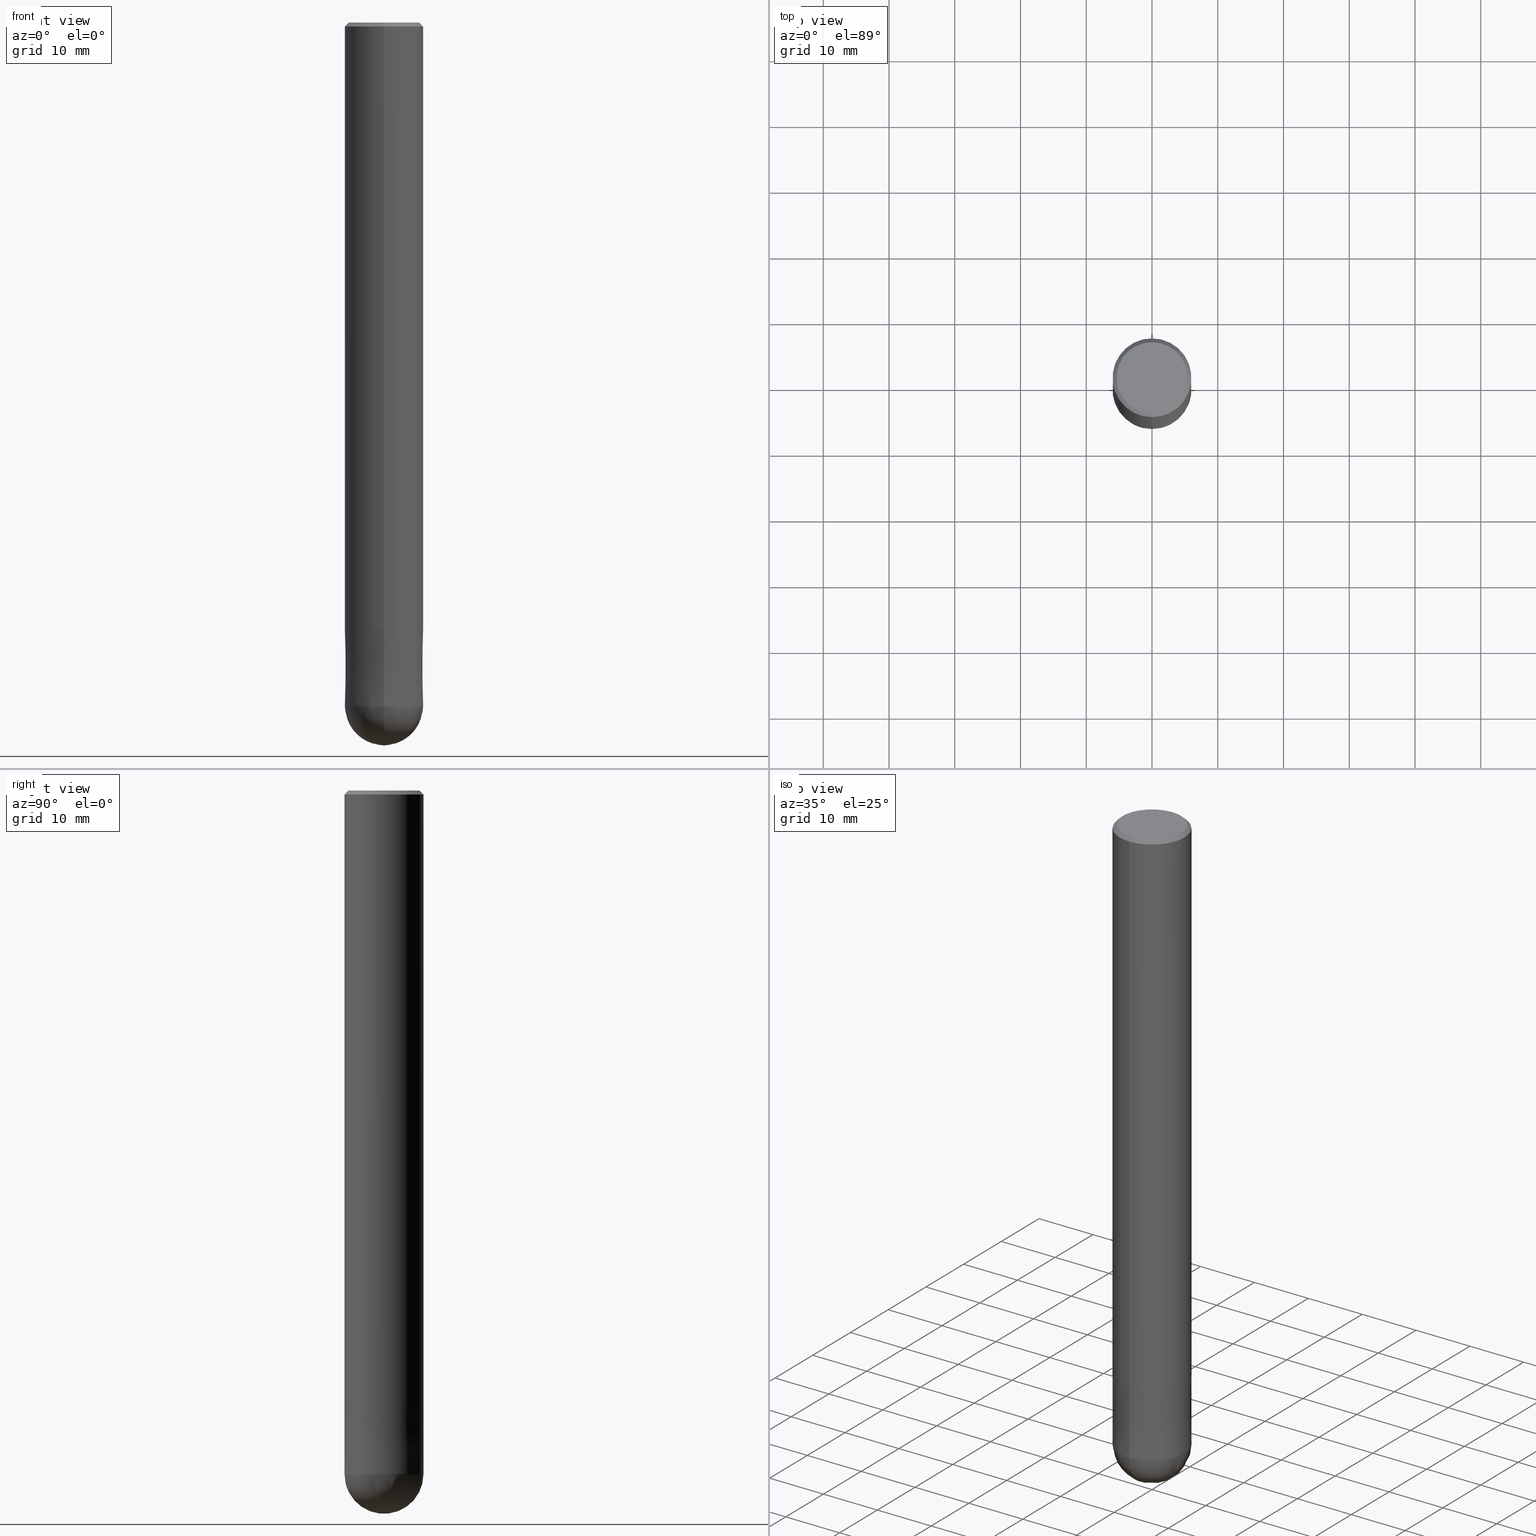
[diagram: canonical four-view strip — front | top / right | iso, engineering-drawing reading convention]
A machine part, canonical four-view strip (front | top / right | iso — engineering-drawing reading convention). The complete STEP part file that produces these views, byte-faithful:
ISO-10303-21;
HEADER;
FILE_DESCRIPTION(('no description'),'unknown implementation level');
FILE_NAME('CFB3120-1800-Huellk.stp','  ',('CIMSOURCE GmbH'),('CADClick - KiM GmbH - www.kimweb.de'),'unknown preprocess','ACIS','unknown authorization');
FILE_SCHEMA(('automotive_design'));
ENDSEC;
DATA;
#1=MECHANICAL_DESIGN_GEOMETRIC_PRESENTATION_REPRESENTATION(' ',(#10,#11,#12,#13,#14,#15,#16,#17,#18,#19,#20,#21,#22,#23,#24,#25,#26,#27,#28,#29,#30,#31,#32,#33,#34,#35,#36,#37,#38,#39,#40,#41,#42,#43,#44,#45,#46,#47),#6);
#2=PRODUCT_DEFINITION_CONTEXT('',#48,'design');
#3=APPLICATION_PROTOCOL_DEFINITION('INTERNATIONAL STANDARD','automotive_design',1994,#48);
#4=PRODUCT_CATEGORY_RELATIONSHIP('NONE','NONE',#49,#50);
#5=SHAPE_DEFINITION_REPRESENTATION(#51,#52);
#6= (GEOMETRIC_REPRESENTATION_CONTEXT(3)GLOBAL_UNCERTAINTY_ASSIGNED_CONTEXT((#55))GLOBAL_UNIT_ASSIGNED_CONTEXT((#57,#58,#59))REPRESENTATION_CONTEXT('NONE','WORKSPACE'));
#10=STYLED_ITEM('',(#61),#62);
#11=STYLED_ITEM('',(#63),#64);
#12=STYLED_ITEM('',(#65),#66);
#13=STYLED_ITEM('',(#67),#68);
#14=STYLED_ITEM('',(#69),#70);
#15=STYLED_ITEM('',(#71),#72);
#16=STYLED_ITEM('',(#73),#74);
#17=STYLED_ITEM('',(#75),#76);
#18=STYLED_ITEM('',(#77),#78);
#19=STYLED_ITEM('',(#79),#80);
#20=STYLED_ITEM('',(#81),#82);
#21=STYLED_ITEM('',(#83),#84);
#22=STYLED_ITEM('',(#85),#86);
#23=STYLED_ITEM('',(#87),#88);
#24=STYLED_ITEM('',(#89),#90);
#25=STYLED_ITEM('',(#91),#92);
#26=STYLED_ITEM('',(#93),#94);
#27=STYLED_ITEM('',(#95),#96);
#28=STYLED_ITEM('',(#97),#98);
#29=STYLED_ITEM('',(#99),#100);
#30=STYLED_ITEM('',(#101),#102);
#31=STYLED_ITEM('',(#103),#104);
#32=STYLED_ITEM('',(#105),#106);
#33=STYLED_ITEM('',(#107),#108);
#34=STYLED_ITEM('',(#109),#110);
#35=STYLED_ITEM('',(#111),#112);
#36=STYLED_ITEM('',(#113),#114);
#37=STYLED_ITEM('',(#115),#116);
#38=STYLED_ITEM('',(#117),#118);
#39=STYLED_ITEM('',(#119),#120);
#40=STYLED_ITEM('',(#121),#122);
#41=STYLED_ITEM('',(#123),#124);
#42=STYLED_ITEM('',(#125),#126);
#43=STYLED_ITEM('',(#127),#128);
#44=STYLED_ITEM('',(#129),#130);
#45=STYLED_ITEM('',(#131),#132);
#46=STYLED_ITEM('',(#133),#134);
#47=STYLED_ITEM('',(#135),#136);
#48=APPLICATION_CONTEXT(' ');
#49=PRODUCT_CATEGORY('part','NONE');
#50=PRODUCT_RELATED_PRODUCT_CATEGORY('detail',' ',(#137));
#51=PRODUCT_DEFINITION_SHAPE('NONE','NONE',#138);
#52=ADVANCED_BREP_SHAPE_REPRESENTATION('1',(#96,#139),#6);
#55=UNCERTAINTY_MEASURE_WITH_UNIT(LENGTH_MEASURE(1.0E-006),#57,'','');
#57= (CONVERSION_BASED_UNIT('MILLIMETRE',#142)LENGTH_UNIT()NAMED_UNIT(#145));
#58= (NAMED_UNIT(#147)PLANE_ANGLE_UNIT()SI_UNIT($,.RADIAN.));
#59= (NAMED_UNIT(#147)SOLID_ANGLE_UNIT()SI_UNIT($,.STERADIAN.));
#61=PRESENTATION_STYLE_ASSIGNMENT((#153));
#62=EDGE_CURVE('',#132,#116,#154,.T.);
#63=PRESENTATION_STYLE_ASSIGNMENT((#155));
#64=ADVANCED_FACE('',(#156),#157,.T.);
#65=PRESENTATION_STYLE_ASSIGNMENT((#158));
#66=VERTEX_POINT('',#159);
#67=PRESENTATION_STYLE_ASSIGNMENT((#160));
#68=EDGE_CURVE('',#72,#136,#161,.T.);
#69=PRESENTATION_STYLE_ASSIGNMENT((#162));
#70=ADVANCED_FACE('',(#163),#164,.T.);
#71=PRESENTATION_STYLE_ASSIGNMENT((#165));
#72=VERTEX_POINT('',#166);
#73=PRESENTATION_STYLE_ASSIGNMENT((#167));
#74=VERTEX_POINT('',#168);
#75=PRESENTATION_STYLE_ASSIGNMENT((#169));
#76=VERTEX_POINT('',#170);
#77=PRESENTATION_STYLE_ASSIGNMENT((#171));
#78=ADVANCED_FACE('',(#172),#173,.T.);
#79=PRESENTATION_STYLE_ASSIGNMENT((#174));
#80=VERTEX_POINT('',#175);
#81=PRESENTATION_STYLE_ASSIGNMENT((#176));
#82=ADVANCED_FACE('',(#177),#178,.T.);
#83=PRESENTATION_STYLE_ASSIGNMENT((#179));
#84=EDGE_CURVE('',#132,#118,#180,.T.);
#85=PRESENTATION_STYLE_ASSIGNMENT((#181));
#86=EDGE_CURVE('',#132,#118,#182,.T.);
#87=PRESENTATION_STYLE_ASSIGNMENT((#183));
#88=EDGE_CURVE('',#76,#74,#184,.T.);
#89=PRESENTATION_STYLE_ASSIGNMENT((#185));
#90=EDGE_CURVE('',#66,#80,#186,.T.);
#91=PRESENTATION_STYLE_ASSIGNMENT((#187));
#92=EDGE_CURVE('',#76,#136,#188,.T.);
#93=PRESENTATION_STYLE_ASSIGNMENT((#189));
#94=EDGE_CURVE('',#74,#72,#190,.T.);
#95=PRESENTATION_STYLE_ASSIGNMENT((#191));
#96=MANIFOLD_SOLID_BREP('1',#192);
#97=PRESENTATION_STYLE_ASSIGNMENT((#193));
#98=EDGE_CURVE('',#72,#74,#194,.T.);
#99=PRESENTATION_STYLE_ASSIGNMENT((#195));
#100=EDGE_CURVE('',#136,#76,#196,.T.);
#101=PRESENTATION_STYLE_ASSIGNMENT((#197));
#102=EDGE_CURVE('',#118,#132,#198,.T.);
#103=PRESENTATION_STYLE_ASSIGNMENT((#199));
#104=ADVANCED_FACE('',(#200),#201,.T.);
#105=PRESENTATION_STYLE_ASSIGNMENT((#202));
#106=EDGE_CURVE('',#112,#118,#203,.T.);
#107=PRESENTATION_STYLE_ASSIGNMENT((#204));
#108=EDGE_CURVE('',#112,#116,#205,.T.);
#109=PRESENTATION_STYLE_ASSIGNMENT((#206));
#110=EDGE_CURVE('',#80,#66,#207,.T.);
#111=PRESENTATION_STYLE_ASSIGNMENT((#208));
#112=VERTEX_POINT('',#209);
#113=PRESENTATION_STYLE_ASSIGNMENT((#210));
#114=ADVANCED_FACE('',(#211),#212,.T.);
#115=PRESENTATION_STYLE_ASSIGNMENT((#213));
#116=VERTEX_POINT('',#214);
#117=PRESENTATION_STYLE_ASSIGNMENT((#215));
#118=VERTEX_POINT('',#216);
#119=PRESENTATION_STYLE_ASSIGNMENT((#217));
#120=ADVANCED_FACE('',(#218,#219),#220,.T.);
#121=PRESENTATION_STYLE_ASSIGNMENT((#221));
#122=ADVANCED_FACE('',(#222),#223,.T.);
#123=PRESENTATION_STYLE_ASSIGNMENT((#224));
#124=EDGE_CURVE('',#116,#112,#225,.T.);
#125=PRESENTATION_STYLE_ASSIGNMENT((#226));
#126=ADVANCED_FACE('',(#227),#228,.T.);
#127=PRESENTATION_STYLE_ASSIGNMENT((#229));
#128=EDGE_CURVE('',#66,#72,#230,.T.);
#129=PRESENTATION_STYLE_ASSIGNMENT((#231));
#130=ADVANCED_FACE('',(#232),#233,.T.);
#131=PRESENTATION_STYLE_ASSIGNMENT((#234));
#132=VERTEX_POINT('',#235);
#133=PRESENTATION_STYLE_ASSIGNMENT((#236));
#134=EDGE_CURVE('',#74,#80,#237,.T.);
#135=PRESENTATION_STYLE_ASSIGNMENT((#238));
#136=VERTEX_POINT('',#239);
#137=PRODUCT('1','1','PART-1-DESC',(#240));
#138=PRODUCT_DEFINITION('NONE','NONE',#241,#2);
#139=AXIS2_PLACEMENT_3D('',#242,#243,#244);
#142=LENGTH_MEASURE_WITH_UNIT(LENGTH_MEASURE(1.0),#245);
#145=DIMENSIONAL_EXPONENTS(1.0,0.0,0.0,0.0,0.0,0.0,0.0);
#147=DIMENSIONAL_EXPONENTS(0.0,0.0,0.0,0.0,0.0,0.0,0.0);
#153=CURVE_STYLE('',#246,POSITIVE_LENGTH_MEASURE(1.0E-006),#247);
#154=LINE('',#248,#249);
#155=SURFACE_STYLE_USAGE(.BOTH.,#250);
#156=FACE_OUTER_BOUND('',#251,.T.);
#157=SPHERICAL_SURFACE('',#252,6.00000000000001);
#158=POINT_STYLE(' ',#253,POSITIVE_LENGTH_MEASURE(1.0E-006),#254);
#159=CARTESIAN_POINT('',(0.0,5.4,0.0));
#160=CURVE_STYLE('',#255,POSITIVE_LENGTH_MEASURE(1.0E-006),#256);
#161=LINE('',#257,#258);
#162=SURFACE_STYLE_USAGE(.BOTH.,#259);
#163=FACE_OUTER_BOUND('',#260,.T.);
#164=SPHERICAL_SURFACE('',#261,6.00000000000001);
#165=POINT_STYLE(' ',#262,POSITIVE_LENGTH_MEASURE(1.0E-006),#263);
#166=CARTESIAN_POINT('',(0.0,6.0,-0.599999999999994));
#167=POINT_STYLE(' ',#264,POSITIVE_LENGTH_MEASURE(1.0E-006),#265);
#168=CARTESIAN_POINT('',(7.34763812293426E-016,-6.0,-0.599999999999994));
#169=POINT_STYLE(' ',#266,POSITIVE_LENGTH_MEASURE(1.0E-006),#267);
#170=CARTESIAN_POINT('',(7.34763812293426E-016,-6.0,-92.0));
#171=SURFACE_STYLE_USAGE(.BOTH.,#268);
#172=FACE_OUTER_BOUND('',#269,.T.);
#173=CYLINDRICAL_SURFACE('',#270,6.0);
#174=POINT_STYLE(' ',#271,POSITIVE_LENGTH_MEASURE(1.0E-006),#272);
#175=CARTESIAN_POINT('',(6.61287431064084E-016,-5.4,0.0));
#176=SURFACE_STYLE_USAGE(.BOTH.,#273);
#177=FACE_OUTER_BOUND('',#274,.T.);
#178=CONICAL_SURFACE('',#275,5.7,0.785398163397453);
#179=CURVE_STYLE('',#276,POSITIVE_LENGTH_MEASURE(1.0E-006),#277);
#180=CIRCLE('',#278,6.00000000000001);
#181=CURVE_STYLE('',#279,POSITIVE_LENGTH_MEASURE(1.0E-006),#280);
#182=CIRCLE('',#281,6.0);
#183=CURVE_STYLE('',#282,POSITIVE_LENGTH_MEASURE(1.0E-006),#283);
#184=LINE('',#284,#285);
#185=CURVE_STYLE('',#286,POSITIVE_LENGTH_MEASURE(1.0E-006),#287);
#186=CIRCLE('',#288,5.4);
#187=CURVE_STYLE('',#289,POSITIVE_LENGTH_MEASURE(1.0E-006),#290);
#188=CIRCLE('',#291,6.0);
#189=CURVE_STYLE('',#292,POSITIVE_LENGTH_MEASURE(1.0E-006),#293);
#190=CIRCLE('',#294,6.0);
#191=SURFACE_STYLE_USAGE(.BOTH.,#295);
#192=CLOSED_SHELL('',(#70,#104,#126,#82,#120,#114,#130,#78,#122,#64));
#193=CURVE_STYLE('',#296,POSITIVE_LENGTH_MEASURE(1.0E-006),#297);
#194=CIRCLE('',#298,6.0);
#195=CURVE_STYLE('',#299,POSITIVE_LENGTH_MEASURE(1.0E-006),#300);
#196=CIRCLE('',#301,6.0);
#197=CURVE_STYLE('',#302,POSITIVE_LENGTH_MEASURE(1.0E-006),#303);
#198=CIRCLE('',#304,6.0);
#199=SURFACE_STYLE_USAGE(.BOTH.,#305);
#200=FACE_OUTER_BOUND('',#306,.T.);
#201=CONICAL_SURFACE('',#307,5.99995,8.33333333319503E-006);
#202=CURVE_STYLE('',#308,POSITIVE_LENGTH_MEASURE(1.0E-006),#309);
#203=LINE('',#310,#311);
#204=CURVE_STYLE('',#312,POSITIVE_LENGTH_MEASURE(1.0E-006),#313);
#205=CIRCLE('',#314,5.9999);
#206=CURVE_STYLE('',#315,POSITIVE_LENGTH_MEASURE(1.0E-006),#316);
#207=CIRCLE('',#317,5.4);
#208=POINT_STYLE(' ',#318,POSITIVE_LENGTH_MEASURE(1.0E-006),#319);
#209=CARTESIAN_POINT('',(0.0,5.9999,-92.0));
#210=SURFACE_STYLE_USAGE(.BOTH.,#320);
#211=FACE_OUTER_BOUND('',#321,.T.);
#212=PLANE('',#322);
#213=POINT_STYLE(' ',#323,POSITIVE_LENGTH_MEASURE(1.0E-006),#324);
#214=CARTESIAN_POINT('',(7.34751566229888E-016,-5.9999,-92.0));
#215=POINT_STYLE(' ',#325,POSITIVE_LENGTH_MEASURE(1.0E-006),#326);
#216=CARTESIAN_POINT('',(0.0,6.0,-104.0));
#217=SURFACE_STYLE_USAGE(.BOTH.,#327);
#218=FACE_OUTER_BOUND('',#328,.T.);
#219=FACE_BOUND('',#329,.T.);
#220=PLANE('',#330);
#221=SURFACE_STYLE_USAGE(.BOTH.,#331);
#222=FACE_OUTER_BOUND('',#332,.T.);
#223=CONICAL_SURFACE('',#333,5.99995,8.33333333319503E-006);
#224=CURVE_STYLE('',#334,POSITIVE_LENGTH_MEASURE(1.0E-006),#335);
#225=CIRCLE('',#336,5.9999);
#226=SURFACE_STYLE_USAGE(.BOTH.,#337);
#227=FACE_OUTER_BOUND('',#338,.T.);
#228=CYLINDRICAL_SURFACE('',#339,6.0);
#229=CURVE_STYLE('',#340,POSITIVE_LENGTH_MEASURE(1.0E-006),#341);
#230=LINE('',#342,#343);
#231=SURFACE_STYLE_USAGE(.BOTH.,#344);
#232=FACE_OUTER_BOUND('',#345,.T.);
#233=CONICAL_SURFACE('',#346,5.7,0.785398163397453);
#234=POINT_STYLE(' ',#347,POSITIVE_LENGTH_MEASURE(1.0E-006),#348);
#235=CARTESIAN_POINT('',(7.34763812293426E-016,-6.0,-104.0));
#236=CURVE_STYLE('',#349,POSITIVE_LENGTH_MEASURE(1.0E-006),#350);
#237=LINE('',#351,#352);
#238=POINT_STYLE(' ',#353,POSITIVE_LENGTH_MEASURE(1.0E-006),#354);
#239=CARTESIAN_POINT('',(0.0,6.0,-92.0));
#240=PRODUCT_CONTEXT('',#48,'mechanical');
#241=PRODUCT_DEFINITION_FORMATION_WITH_SPECIFIED_SOURCE(' ','NONE',#137,.NOT_KNOWN.);
#242=CARTESIAN_POINT('',(0.0,0.0,0.0));
#243=DIRECTION('',(0.0,0.0,1.0));
#244=DIRECTION('',(1.0,0.0,0.0));
#245= (NAMED_UNIT(#145)LENGTH_UNIT()SI_UNIT(.MILLI.,.METRE.));
#246=DRAUGHTING_PRE_DEFINED_CURVE_FONT('continuous');
#247=COLOUR_RGB('',0.800000011920929,0.800000011920929,0.800000011920929);
#248=CARTESIAN_POINT('',(7.34757689261657E-016,-5.99995,-98.0));
#249=VECTOR('',#356,1.0);
#250=SURFACE_SIDE_STYLE('',(#357));
#251=EDGE_LOOP('',(#358,#359));
#252=AXIS2_PLACEMENT_3D('',#360,#361,#362);
#253=PRE_DEFINED_MARKER('');
#254=COLOUR_RGB('',0.498039215803146,0.498039215803146,0.498039215803146);
#255=DRAUGHTING_PRE_DEFINED_CURVE_FONT('continuous');
#256=COLOUR_RGB('',0.498039215803146,0.498039215803146,0.498039215803146);
#257=CARTESIAN_POINT('',(-7.34763812293426E-016,6.0,-46.3));
#258=VECTOR('',#363,1.0);
#259=SURFACE_SIDE_STYLE('',(#364));
#260=EDGE_LOOP('',(#365,#366));
#261=AXIS2_PLACEMENT_3D('',#367,#368,#369);
#262=PRE_DEFINED_MARKER('');
#263=COLOUR_RGB('',0.498039215803146,0.498039215803146,0.498039215803146);
#264=PRE_DEFINED_MARKER('');
#265=COLOUR_RGB('',0.498039215803146,0.498039215803146,0.498039215803146);
#266=PRE_DEFINED_MARKER('');
#267=COLOUR_RGB('',0.498039215803146,0.498039215803146,0.498039215803146);
#268=SURFACE_SIDE_STYLE('',(#370));
#269=EDGE_LOOP('',(#371,#372,#373,#374));
#270=AXIS2_PLACEMENT_3D('',#375,#376,#377);
#271=PRE_DEFINED_MARKER('');
#272=COLOUR_RGB('',0.498039215803146,0.498039215803146,0.498039215803146);
#273=SURFACE_SIDE_STYLE('',(#378));
#274=EDGE_LOOP('',(#379,#380,#381,#382));
#275=AXIS2_PLACEMENT_3D('',#383,#384,#385);
#276=DRAUGHTING_PRE_DEFINED_CURVE_FONT('continuous');
#277=COLOUR_RGB('',0.800000011920929,0.800000011920929,0.800000011920929);
#278=AXIS2_PLACEMENT_3D('',#386,#387,#388);
#279=DRAUGHTING_PRE_DEFINED_CURVE_FONT('continuous');
#280=COLOUR_RGB('',0.800000011920929,0.800000011920929,0.800000011920929);
#281=AXIS2_PLACEMENT_3D('',#389,#390,#391);
#282=DRAUGHTING_PRE_DEFINED_CURVE_FONT('continuous');
#283=COLOUR_RGB('',0.498039215803146,0.498039215803146,0.498039215803146);
#284=CARTESIAN_POINT('',(7.34763812293426E-016,-6.0,-46.3));
#285=VECTOR('',#392,1.0);
#286=DRAUGHTING_PRE_DEFINED_CURVE_FONT('continuous');
#287=COLOUR_RGB('',0.498039215803146,0.498039215803146,0.498039215803146);
#288=AXIS2_PLACEMENT_3D('',#393,#394,#395);
#289=DRAUGHTING_PRE_DEFINED_CURVE_FONT('continuous');
#290=COLOUR_RGB('',0.498039215803146,0.498039215803146,0.498039215803146);
#291=AXIS2_PLACEMENT_3D('',#396,#397,#398);
#292=DRAUGHTING_PRE_DEFINED_CURVE_FONT('continuous');
#293=COLOUR_RGB('',0.498039215803146,0.498039215803146,0.498039215803146);
#294=AXIS2_PLACEMENT_3D('',#399,#400,#401);
#295=SURFACE_SIDE_STYLE('',(#402));
#296=DRAUGHTING_PRE_DEFINED_CURVE_FONT('continuous');
#297=COLOUR_RGB('',0.498039215803146,0.498039215803146,0.498039215803146);
#298=AXIS2_PLACEMENT_3D('',#403,#404,#405);
#299=DRAUGHTING_PRE_DEFINED_CURVE_FONT('continuous');
#300=COLOUR_RGB('',0.498039215803146,0.498039215803146,0.498039215803146);
#301=AXIS2_PLACEMENT_3D('',#406,#407,#408);
#302=DRAUGHTING_PRE_DEFINED_CURVE_FONT('continuous');
#303=COLOUR_RGB('',0.800000011920929,0.800000011920929,0.800000011920929);
#304=AXIS2_PLACEMENT_3D('',#409,#410,#411);
#305=SURFACE_SIDE_STYLE('',(#412));
#306=EDGE_LOOP('',(#413,#414,#415,#416));
#307=AXIS2_PLACEMENT_3D('',#417,#418,#419);
#308=DRAUGHTING_PRE_DEFINED_CURVE_FONT('continuous');
#309=COLOUR_RGB('',0.800000011920929,0.800000011920929,0.800000011920929);
#310=CARTESIAN_POINT('',(-7.34757689261657E-016,5.99995,-98.0));
#311=VECTOR('',#420,1.0);
#312=DRAUGHTING_PRE_DEFINED_CURVE_FONT('continuous');
#313=COLOUR_RGB('',0.800000011920929,0.800000011920929,0.800000011920929);
#314=AXIS2_PLACEMENT_3D('',#421,#422,#423);
#315=DRAUGHTING_PRE_DEFINED_CURVE_FONT('continuous');
#316=COLOUR_RGB('',0.498039215803146,0.498039215803146,0.498039215803146);
#317=AXIS2_PLACEMENT_3D('',#424,#425,#426);
#318=PRE_DEFINED_MARKER('');
#319=COLOUR_RGB('',0.800000011920929,0.800000011920929,0.800000011920929);
#320=SURFACE_SIDE_STYLE('',(#427));
#321=EDGE_LOOP('',(#428,#429));
#322=AXIS2_PLACEMENT_3D('',#430,#431,#432);
#323=PRE_DEFINED_MARKER('');
#324=COLOUR_RGB('',0.800000011920929,0.800000011920929,0.800000011920929);
#325=PRE_DEFINED_MARKER('');
#326=COLOUR_RGB('',0.800000011920929,0.800000011920929,0.800000011920929);
#327=SURFACE_SIDE_STYLE('',(#433));
#328=EDGE_LOOP('',(#434,#435));
#329=EDGE_LOOP('',(#436,#437));
#330=AXIS2_PLACEMENT_3D('',#438,#439,#440);
#331=SURFACE_SIDE_STYLE('',(#441));
#332=EDGE_LOOP('',(#442,#443,#444,#445));
#333=AXIS2_PLACEMENT_3D('',#446,#447,#448);
#334=DRAUGHTING_PRE_DEFINED_CURVE_FONT('continuous');
#335=COLOUR_RGB('',0.800000011920929,0.800000011920929,0.800000011920929);
#336=AXIS2_PLACEMENT_3D('',#449,#450,#451);
#337=SURFACE_SIDE_STYLE('',(#452));
#338=EDGE_LOOP('',(#453,#454,#455,#456));
#339=AXIS2_PLACEMENT_3D('',#457,#458,#459);
#340=DRAUGHTING_PRE_DEFINED_CURVE_FONT('continuous');
#341=COLOUR_RGB('',0.498039215803146,0.498039215803146,0.498039215803146);
#342=CARTESIAN_POINT('',(-6.98025621678755E-016,5.7,-0.299999999999997));
#343=VECTOR('',#460,1.0);
#344=SURFACE_SIDE_STYLE('',(#461));
#345=EDGE_LOOP('',(#462,#463,#464,#465));
#346=AXIS2_PLACEMENT_3D('',#466,#467,#468);
#347=PRE_DEFINED_MARKER('');
#348=COLOUR_RGB('',0.800000011920929,0.800000011920929,0.800000011920929);
#349=DRAUGHTING_PRE_DEFINED_CURVE_FONT('continuous');
#350=COLOUR_RGB('',0.498039215803146,0.498039215803146,0.498039215803146);
#351=CARTESIAN_POINT('',(6.98025621678755E-016,-5.7,-0.299999999999997));
#352=VECTOR('',#469,1.0);
#353=PRE_DEFINED_MARKER('');
#354=COLOUR_RGB('',0.498039215803146,0.498039215803146,0.498039215803146);
#356=DIRECTION('',(-1.02050529482323E-021,8.33333333309857E-006,0.999999999965278));
#357=SURFACE_STYLE_FILL_AREA(#470);
#358=ORIENTED_EDGE('',*,*,#84,.T.);
#359=ORIENTED_EDGE('',*,*,#102,.T.);
#360=CARTESIAN_POINT('',(0.0,0.0,-104.0));
#361=DIRECTION('',(0.0,1.0,0.0));
#362=DIRECTION('',(0.0,0.0,-1.0));
#363=DIRECTION('',(0.0,0.0,-1.0));
#364=SURFACE_STYLE_FILL_AREA(#471);
#365=ORIENTED_EDGE('',*,*,#84,.F.);
#366=ORIENTED_EDGE('',*,*,#86,.T.);
#367=CARTESIAN_POINT('',(0.0,0.0,-104.0));
#368=DIRECTION('',(0.0,1.0,0.0));
#369=DIRECTION('',(0.0,0.0,-1.0));
#370=SURFACE_STYLE_FILL_AREA(#472);
#371=ORIENTED_EDGE('',*,*,#68,.T.);
#372=ORIENTED_EDGE('',*,*,#92,.F.);
#373=ORIENTED_EDGE('',*,*,#88,.T.);
#374=ORIENTED_EDGE('',*,*,#94,.T.);
#375=CARTESIAN_POINT('',(0.0,0.0,-46.3));
#376=DIRECTION('',(-0.0,-0.0,1.0));
#377=DIRECTION('',(0.0,1.0,0.0));
#378=SURFACE_STYLE_FILL_AREA(#473);
#379=ORIENTED_EDGE('',*,*,#128,.F.);
#380=ORIENTED_EDGE('',*,*,#90,.T.);
#381=ORIENTED_EDGE('',*,*,#134,.F.);
#382=ORIENTED_EDGE('',*,*,#98,.F.);
#383=CARTESIAN_POINT('',(0.0,0.0,-0.299999999999997));
#384=DIRECTION('',(0.0,-0.0,-1.0));
#385=DIRECTION('',(0.0,1.0,0.0));
#386=CARTESIAN_POINT('',(0.0,0.0,-104.0));
#387=DIRECTION('',(1.0,0.0,1.22460635382238E-016));
#388=DIRECTION('',(-1.22460635382238E-016,0.0,1.0));
#389=CARTESIAN_POINT('',(0.0,0.0,-104.0));
#390=DIRECTION('',(0.0,0.0,-1.0));
#391=DIRECTION('',(0.0,1.0,0.0));
#392=DIRECTION('',(-0.0,-0.0,1.0));
#393=CARTESIAN_POINT('',(0.0,0.0,0.0));
#394=DIRECTION('',(0.0,0.0,-1.0));
#395=DIRECTION('',(0.0,1.0,0.0));
#396=CARTESIAN_POINT('',(0.0,0.0,-92.0));
#397=DIRECTION('',(0.0,0.0,-1.0));
#398=DIRECTION('',(0.0,1.0,0.0));
#399=CARTESIAN_POINT('',(0.0,0.0,-0.599999999999994));
#400=DIRECTION('',(0.0,0.0,-1.0));
#401=DIRECTION('',(0.0,1.0,0.0));
#402=SURFACE_STYLE_FILL_AREA(#474);
#403=CARTESIAN_POINT('',(0.0,0.0,-0.599999999999994));
#404=DIRECTION('',(0.0,0.0,-1.0));
#405=DIRECTION('',(0.0,1.0,0.0));
#406=CARTESIAN_POINT('',(0.0,0.0,-92.0));
#407=DIRECTION('',(0.0,0.0,-1.0));
#408=DIRECTION('',(0.0,1.0,0.0));
#409=CARTESIAN_POINT('',(0.0,0.0,-104.0));
#410=DIRECTION('',(0.0,0.0,-1.0));
#411=DIRECTION('',(0.0,1.0,0.0));
#412=SURFACE_STYLE_FILL_AREA(#475);
#413=ORIENTED_EDGE('',*,*,#106,.F.);
#414=ORIENTED_EDGE('',*,*,#108,.T.);
#415=ORIENTED_EDGE('',*,*,#62,.F.);
#416=ORIENTED_EDGE('',*,*,#102,.F.);
#417=CARTESIAN_POINT('',(0.0,0.0,-98.0));
#418=DIRECTION('',(0.0,-0.0,-1.0));
#419=DIRECTION('',(0.0,1.0,0.0));
#420=DIRECTION('',(-1.02050529482323E-021,8.33333333309857E-006,-0.999999999965278));
#421=CARTESIAN_POINT('',(0.0,0.0,-92.0));
#422=DIRECTION('',(0.0,0.0,-1.0));
#423=DIRECTION('',(0.0,1.0,0.0));
#424=CARTESIAN_POINT('',(0.0,0.0,0.0));
#425=DIRECTION('',(0.0,0.0,-1.0));
#426=DIRECTION('',(0.0,1.0,0.0));
#427=SURFACE_STYLE_FILL_AREA(#476);
#428=ORIENTED_EDGE('',*,*,#90,.F.);
#429=ORIENTED_EDGE('',*,*,#110,.F.);
#430=CARTESIAN_POINT('',(0.0,2.7,0.0));
#431=DIRECTION('',(-0.0,0.0,1.0));
#432=DIRECTION('',(0.0,-1.0,0.0));
#433=SURFACE_STYLE_FILL_AREA(#477);
#434=ORIENTED_EDGE('',*,*,#100,.T.);
#435=ORIENTED_EDGE('',*,*,#92,.T.);
#436=ORIENTED_EDGE('',*,*,#108,.F.);
#437=ORIENTED_EDGE('',*,*,#124,.F.);
#438=CARTESIAN_POINT('',(0.0,3.0,-92.0));
#439=DIRECTION('',(0.0,0.0,-1.0));
#440=DIRECTION('',(0.0,1.0,0.0));
#441=SURFACE_STYLE_FILL_AREA(#478);
#442=ORIENTED_EDGE('',*,*,#106,.T.);
#443=ORIENTED_EDGE('',*,*,#86,.F.);
#444=ORIENTED_EDGE('',*,*,#62,.T.);
#445=ORIENTED_EDGE('',*,*,#124,.T.);
#446=CARTESIAN_POINT('',(0.0,0.0,-98.0));
#447=DIRECTION('',(0.0,-0.0,-1.0));
#448=DIRECTION('',(0.0,1.0,0.0));
#449=CARTESIAN_POINT('',(0.0,0.0,-92.0));
#450=DIRECTION('',(0.0,0.0,-1.0));
#451=DIRECTION('',(0.0,1.0,0.0));
#452=SURFACE_STYLE_FILL_AREA(#479);
#453=ORIENTED_EDGE('',*,*,#68,.F.);
#454=ORIENTED_EDGE('',*,*,#98,.T.);
#455=ORIENTED_EDGE('',*,*,#88,.F.);
#456=ORIENTED_EDGE('',*,*,#100,.F.);
#457=CARTESIAN_POINT('',(0.0,0.0,-46.3));
#458=DIRECTION('',(-0.0,-0.0,1.0));
#459=DIRECTION('',(0.0,1.0,0.0));
#460=DIRECTION('',(-8.65927457071939E-017,0.707106781186551,-0.707106781186544));
#461=SURFACE_STYLE_FILL_AREA(#480);
#462=ORIENTED_EDGE('',*,*,#128,.T.);
#463=ORIENTED_EDGE('',*,*,#94,.F.);
#464=ORIENTED_EDGE('',*,*,#134,.T.);
#465=ORIENTED_EDGE('',*,*,#110,.T.);
#466=CARTESIAN_POINT('',(0.0,0.0,-0.299999999999997));
#467=DIRECTION('',(0.0,-0.0,-1.0));
#468=DIRECTION('',(0.0,1.0,0.0));
#469=DIRECTION('',(-8.65927457071939E-017,0.707106781186551,0.707106781186544));
#470=FILL_AREA_STYLE('',(#481));
#471=FILL_AREA_STYLE('',(#482));
#472=FILL_AREA_STYLE('',(#483));
#473=FILL_AREA_STYLE('',(#484));
#474=FILL_AREA_STYLE('',(#485));
#475=FILL_AREA_STYLE('',(#486));
#476=FILL_AREA_STYLE('',(#487));
#477=FILL_AREA_STYLE('',(#488));
#478=FILL_AREA_STYLE('',(#489));
#479=FILL_AREA_STYLE('',(#490));
#480=FILL_AREA_STYLE('',(#491));
#481=FILL_AREA_STYLE_COLOUR('',#492);
#482=FILL_AREA_STYLE_COLOUR('',#493);
#483=FILL_AREA_STYLE_COLOUR('',#494);
#484=FILL_AREA_STYLE_COLOUR('',#495);
#485=FILL_AREA_STYLE_COLOUR('',#496);
#486=FILL_AREA_STYLE_COLOUR('',#497);
#487=FILL_AREA_STYLE_COLOUR('',#498);
#488=FILL_AREA_STYLE_COLOUR('',#499);
#489=FILL_AREA_STYLE_COLOUR('',#500);
#490=FILL_AREA_STYLE_COLOUR('',#501);
#491=FILL_AREA_STYLE_COLOUR('',#502);
#492=COLOUR_RGB('',0.800000011920929,0.800000011920929,0.800000011920929);
#493=COLOUR_RGB('',0.800000011920929,0.800000011920929,0.800000011920929);
#494=COLOUR_RGB('',0.498039215803146,0.498039215803146,0.498039215803146);
#495=COLOUR_RGB('',0.498039215803146,0.498039215803146,0.498039215803146);
#496=COLOUR_RGB('',0.800000011920929,0.800000011920929,0.800000011920929);
#497=COLOUR_RGB('',0.800000011920929,0.800000011920929,0.800000011920929);
#498=COLOUR_RGB('',0.498039215803146,0.498039215803146,0.498039215803146);
#499=COLOUR_RGB('',0.498039215803146,0.498039215803146,0.498039215803146);
#500=COLOUR_RGB('',0.800000011920929,0.800000011920929,0.800000011920929);
#501=COLOUR_RGB('',0.498039215803146,0.498039215803146,0.498039215803146);
#502=COLOUR_RGB('',0.498039215803146,0.498039215803146,0.498039215803146);
#503=AXIS2_PLACEMENT_3D('PCS',#504,#505,#506);
#504=CARTESIAN_POINT('',(0.0,0.0,0.0));
#505=DIRECTION('',(0.0,0.0,1.0));
#506=DIRECTION('',(1.0,0.0,0.0));
#507=AXIS2_PLACEMENT_3D('CIP',#508,#509,#510);
#508=CARTESIAN_POINT('',(0.0,0.0,-110.0));
#509=DIRECTION('',(0.0,0.0,1.0));
#510=DIRECTION('',(1.0,0.0,0.0));
#511=AXIS2_PLACEMENT_3D('CRP',#512,#513,#514);
#512=CARTESIAN_POINT('',(-6.0,0.0,-110.0));
#513=DIRECTION('',(0.0,0.0,1.0));
#514=DIRECTION('',(1.0,0.0,0.0));
#515=AXIS2_PLACEMENT_3D('MCS',#516,#517,#518);
#516=CARTESIAN_POINT('',(0.0,0.0,-92.0));
#517=DIRECTION('',(0.0,0.0,1.0));
#518=DIRECTION('',(1.0,0.0,0.0));
#519=CONSTRUCTIVE_GEOMETRY_REPRESENTATION_RELATIONSHIP('coordinate systems',$,#52,#520);
#520=CONSTRUCTIVE_GEOMETRY_REPRESENTATION('coordinate systems',(#503,#507,#511,#515),#6);
ENDSEC;
END-ISO-10303-21;
